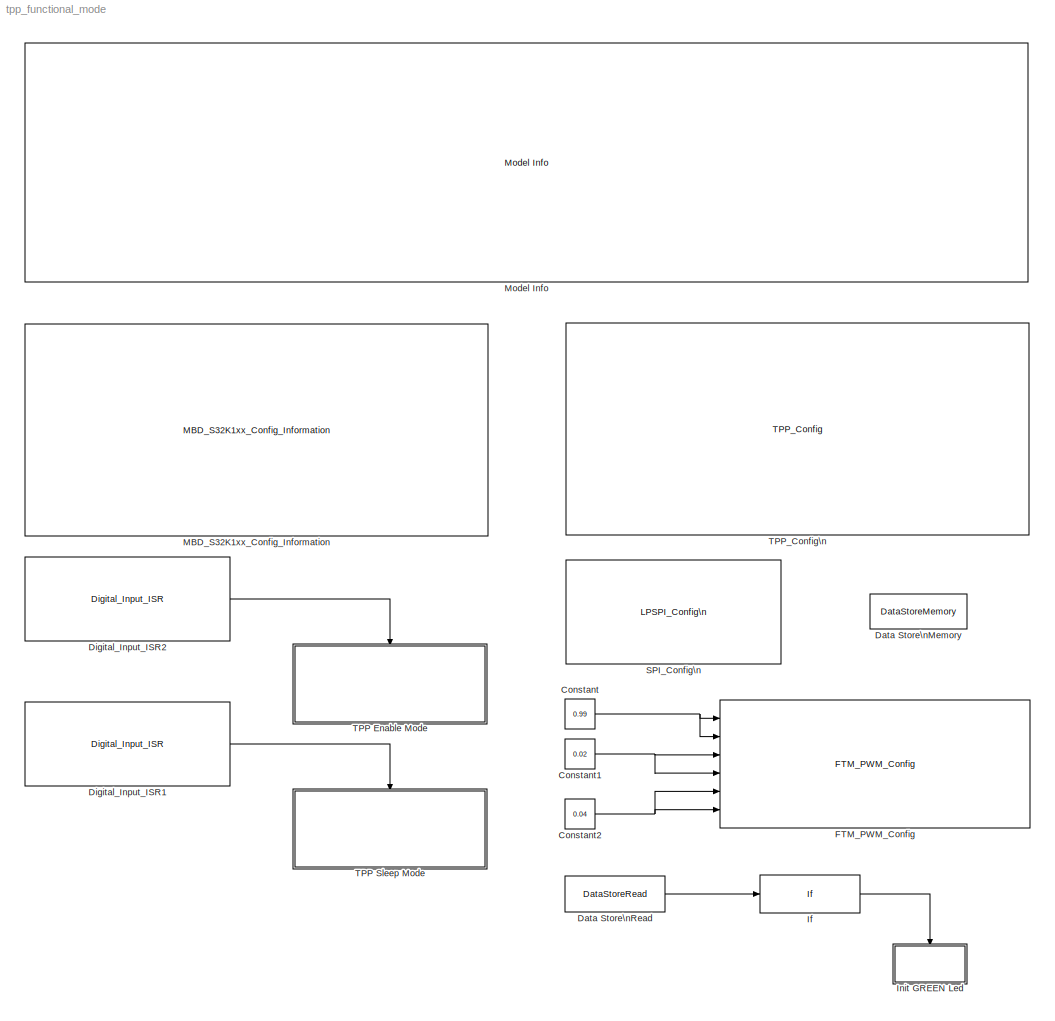
MODEL tpp_functional_mode
KIND model
CONFIG InitFcn = mbd_s32k_consistency_checks(bdroot(gcs));
BLOCK [Constant] Constant
  OutDataTypeStr = single
  SID = 2
  Value = 0.99
BLOCK [Constant] Constant1
  OutDataTypeStr = single
  SID = 3
  Value = 0.02
BLOCK [Constant] Constant2
  OutDataTypeStr = single
  SID = 4
  Value = 0.04
BLOCK [DataStoreMemory] Data Store\nMemory
  DataStoreName = initLED
  OutDataTypeStr = uint8
  ReadBeforeWriteMsg = warning
  SID = 48
  ShowAdditionalParam = off
  WriteAfterReadMsg = warning
  WriteAfterWriteMsg = warning
BLOCK [DataStoreRead] Data Store\nRead
  DataStoreName = initLED
  Ports = [0, 1]
  SID = 49
BLOCK [Reference] Digital_Input_ISR1  REF=mbd_s32k1xx_ec_toolbox/GPIO Blocks/Digital_Input_ISR
  MultiThreadCoSim = auto
  Ports = [0, 1]
  SID = 7
  SourceBlock = mbd_s32k1xx_ec_toolbox/GPIO Blocks/Digital_Input_ISR
  SourceType = gpi_s32k_isr
  gpio_pin = PTC13: [PTC13 | Port C I/O]
  irqc = on falling-edge
  prio = 15
BLOCK [Reference] Digital_Input_ISR2  REF=mbd_s32k1xx_ec_toolbox/GPIO Blocks/Digital_Input_ISR
  MultiThreadCoSim = auto
  Ports = [0, 1]
  SID = 8
  SourceBlock = mbd_s32k1xx_ec_toolbox/GPIO Blocks/Digital_Input_ISR
  SourceType = gpi_s32k_isr
  gpio_pin = PTC12: [PTC12 | Port C I/O]
  irqc = on rising-edge
  prio = 15
BLOCK [Reference] FTM_PWM_Config  REF=mbd_s32k1xx_ec_toolbox/Motor Control Blocks/FTM Blocks/FTM_PWM_Config
  MultiThreadCoSim = auto
  Ports = [6]
  SID = 10
  SourceBlock = mbd_s32k1xx_ec_toolbox/Motor Control Blocks/FTM Blocks/FTM_PWM_Config
  SourceType = FTM_s32k_pwm_config_block
  chTrigger0 = off
  chTrigger1 = off
  chTrigger2 = off
  chTrigger3 = off
  chTrigger4 = off
  chTrigger5 = off
  chTrigger6 = off
  chTrigger7 = off
  chan0En = on
  chan0Type = Independent
  chan2En = on
  chan2Type = Independent
  chan4En = on
  chan4Type = Independent
  chan6En = off
  chan6Type = Independent
  chnMatch0 = off
  chnMatch1 = off
  chnMatch2 = off
  chnMatch3 = off
  chnMatch4 = off
  chnMatch5 = off
  chnMatch6 = off
  chnMatch7 = off
  deadtimeNs = 0
  deadtimePrescaler = Divide by 1
  deadtimeTicks = 0
  deadtimeUnits = Nanoseconds
  dutyCycleCh0 = 0.002
  dutyCycleCh1 = 0.002
  dutyCycleCh2 = 0.002
  dutyCycleCh3 = 0.002
  dutyCycleCh4 = 0.002
  dutyCycleCh5 = 0.002
  dutyCycleCh6 = 0.25
  dutyCycleCh7 = 0.25
  dutyCycleSim = off
  fault_disen_0 = off
  fault_disen_1 = off
  fault_disen_2 = off
  fault_disen_3 = off
  fault_filter_0 = off
  fault_filter_1 = off
  fault_filter_2 = off
  fault_filter_3 = off
  fault_pin_0 = None
  fault_pin_1 = None
  fault_pin_2 = None
  fault_pin_3 = None
  fault_polarity_0 = Active High
  fault_polarity_1 = Active high
  fault_polarity_2 = Active high
  fault_polarity_3 = Active high
  ftmMode = Edge-Aligned PWM
  ftmModule = 3
  ftmPeriod = 4000
  ftmPrescaler = Divide by 1
  ftmPwmUnits = Hz
  ftmSourceClock = 80 MHz
  initTrigger = off
  mcuTargetUpdate = on
  outFrequency = 20000
  outputComplem0 = Main inverted
  outputComplem2 = Main inverted
  outputComplem4 = Main inverted
  outputComplem6 = Main duplicated
  outputLevel0 = Low
  outputLevel1 = Low
  outputLevel2 = Low
  outputLevel3 = Low
  outputLevel4 = Low
  outputLevel5 = Low
  outputLevel6 = Low
  outputLevel7 = Low
  pinFtmCh0 = PTB8: [FTM3_CH0 | FTM Channel]
  pinFtmCh1 = PTB9: [FTM3_CH1 | FTM Channel]
  pinFtmCh2 = PTB10: [FTM3_CH2 | FTM Channel]
  pinFtmCh3 = PTB11: [FTM3_CH3 | FTM Channel]
  pinFtmCh4 = PTC10: [FTM3_CH4 | FTM Channel]
  pinFtmCh5 = PTC11: [FTM3_CH5 | FTM Channel]
  pinFtmCh6 = PTC12: [FTM3_CH6 | FTM Channel]
  pinFtmCh7 = PTC13: [FTM3_CH7 | FTM Channel]
  pinPolCh0 = Active Low
  pinPolCh1 = Active Low
  pinPolCh2 = Active High
  pinPolCh3 = Active High
  pinPolCh4 = Active Low
  pinPolCh5 = Active Low
  pinPolCh6 = Active Low
  pinPolCh7 = Active Low
  pwmFaultClearing = Fault control disabled
  pwmFaultFilterValue = 0
  pwmFaultInterrupt = off
  pwmFaultPinState = Safe Value
  pwmFaultPriority = 15
  pwmFaultProtection = off
  pwmSyncAutoClear = on
  pwmSyncCounterInitial = System Clock
  pwmSyncHwRouting = TRGMUX_FTM7
  pwmSyncInvert = System Clock
  pwmSyncMaxLoad = on
  pwmSyncMinLoad = on
  pwmSyncOutControl = System Clock
  pwmSyncOutMask = System Clock
  pwmSyncPoints = Update now
  pwmSyncTrg = Software trigger
  pwmSyncTrg0 = off
  pwmSyncTrg1 = off
  pwmSyncTrg2 = off
  reloadEnable = off
  reloadFrequency = 0
  reloadHCR = 0
  reloadHalfCycle = off
  reloadPriority = 15
  showAdvOpt = on
  startAfterInit = on
  swcontrol_enable = off
BLOCK [If] If
  IfExpression = u1 < 1
  Ports = [1, 1]
  SID = 41
  ShowElse = off
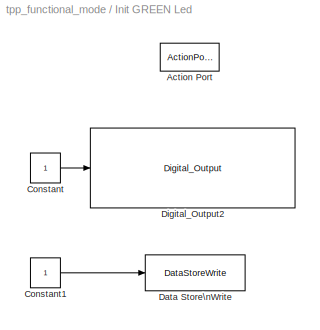
BLOCK [SubSystem] Init GREEN Led
  Ports = [0, 0, 0, 0, 0, 0, 0, 1]
  RequestExecContextInheritance = off
  SID = 82
  TreatAsAtomicUnit = on
BLOCK [ActionPort] Init GREEN Led/Action Port
  ActionPortLabel = if(u1 < 1)
  SID = 84
BLOCK [Constant] Init GREEN Led/Constant
  OutDataTypeStr = boolean
  SID = 86
BLOCK [Constant] Init GREEN Led/Constant1
  OutDataTypeStr = uint8
  SID = 87
BLOCK [DataStoreWrite] Init GREEN Led/Data Store\nWrite
  DataStoreName = initLED
  Ports = [1]
  SID = 88
BLOCK [Reference] Init GREEN Led/Digital_Output2  REF=mbd_s32k1xx_ec_toolbox/GPIO Blocks/Digital_Output
  MultiThreadCoSim = auto
  Ports = [1]
  SID = 89
  SourceBlock = mbd_s32k1xx_ec_toolbox/GPIO Blocks/Digital_Output
  SourceType = gpio_s32k_output
  drive_strength = Low
  gpio_pin = PTD16: [PTD16 | Port D I/O]
  init_val = Low
BLOCK [Reference] MBD_S32K1xx_Config_Information  REF=mbd_s32k1xx_ec_toolbox/MBD_S32K1xx_Config_Information
  ADC_PcrCheckEnDis = on
  AMMCLIB_PcrCheckEnDis = on
  CMP_PcrCheckEnDis = on
  CSEc_PcrCheckEnDis = on
  ConfigParams_PcrCheckEnDis = on
  FM_PcrCheckEnDis = on
  FTM_Dual_Edge_Inputs_PcrCheckEnDis = on
  FTM_Hall_Sensor_Inputs_PcrCheckEnDis = on
  FTM_Input_Edge_Inputs_PcrCheckEnDis = on
  FTM_PWM_PcrCheckEnDis = on
  FTM_Quadrature_Inputs_PcrCheckEnDis = on
  FlexCAN_PcrCheckEnDis = on
  FlexIO_PcrCheckEnDis = on
  GPIO_InputPcrCheckEnDis = on
  GPIO_OutputPcrCheckEnDis = on
  LIN_PcrCheckEnDis = on
  LPI2C_PcrCheckEnDis = on
  LPSPI_PcrCheckEnDis = on
  LPTMR_PcrCheckEnDis = on
  LPUART_PcrCheckEnDis = on
  ModelRef_PcrCheckEnDis = on
  MultiThreadCoSim = auto
  PDB0_PcrCheckEnDis = on
  PIT_PcrCheckEnDis = on
  Ports = []
  Profile_PcrCheckEnDis = on
  RTC_PcrCheckEnDis = on
  SBC_PcrCheckEnDis = on
  SID = 21
  SourceBlock = mbd_s32k1xx_ec_toolbox/MBD_S32K1xx_Config_Information
  SourceType = MBDTBX_EC_S32K
  WDOG_PcrCheckEnDis = on
  config_params = []
  disp_str = Target : S32K144-64KB_SRAM\nPackage : 100-pin\nSystem clock : 80 MHz\nXTAL clock : External 8 MHz\nCompiler : IAR\nTarget Type : FLASH\nDownload Code after build : off\nStep Tick Interrupt Priority : 15
  ds_import_enable = on
  eDMA_PcrCheckEnDis = on
  gcc_target_assemble_opts = -mcpu=cortex-m4 -mthumb -mfloat-abi=hard -mfpu=fpv4-sp-d16 -g
  gcc_target_compile_opts = -mcpu=cortex-m4 -mthumb -mfloat-abi=hard -mfpu=fpv4-sp-d16 -O1 -g -gstrict-dwarf
  gcc_target_default_lcf = on
  gcc_target_link_opts = -mcpu=cortex-m4 -mthumb -mfloat-abi=hard -mfpu=fpv4-sp-d16
  gcc_target_user_lcf = S32K144_64_flash.ld
  ghs_target_assemble_opts = -cpu=cortexm4f -fpu=vfpv4_d16
  ghs_target_compile_opts = -cpu=cortexm4f -thumb -DARM_MATH_CM4 -fpu=vfpv4_d16 -fsingle -Ogeneral -Wundef -Wimplicit-int -Wshadow -Wtrigraphs --no_commons --gnu_asm -gnu99 -gdwarf-2 -G
  ghs_target_default_lcf = on
  ghs_target_link_opts = -cpu=cortexm4f -thumb -fpu=vfpv4_d16
  ghs_target_user_lcf = S32K144_64_flash.ld
  iar_target_assemble_opts = --cpu Cortex-M4F --thumb --fpu VFPv4_sp
  iar_target_compile_opts = --cpu=Cortex-M4F --thumb --fpu=VFPv4_sp -Ol -e --debug --dlib_config normal
  iar_target_default_lcf = on
  iar_target_link_opts = --no_exceptions --vfe --inline
  iar_target_user_lcf = S32K144_64_flash.icf
  mbdt_ver = 0
  mcu_steptick_prio = 15
  mcu_steptick_timer = LPIT Channel 0
  mcu_system_clock_freq = 80
  mcu_target_name = S32K144
  mcu_target_package = 100-LQFP
  mcu_target_sram_size = 64KB
  mcu_xtal_freq = External 8
  pil_download_enable = off
  pil_download_rate = 57600
  pil_opensda_drive = Custom
  pil_opensda_drive_custom = D
  pil_uart_instance = 1
  pil_uart_rx = PTC6: [LPUART1_RX | Receive]
  pil_uart_tx = PTC7: [LPUART1_TX | Transmit]
  rbl_com_port = Custom
  rbl_com_port_custom = COM1
  rbl_download_enable = on
  rbl_download_interface = OpenSDA
  rbl_restart_request = off
  rbl_start_delay = 5000
  target_compiler = GCC
  target_memory = FLASH
BLOCK [Reference] Model Info  REF=simulink/Model-Wide\nUtilities/Model Info
  DisplayStringWithTags = Model Name: %<ModelName>\n\nDescription: %<Description>
  Frame = on
  HorizontalTextAlignment = Left
  LeftAlignmentValue = 0.02
  MaskDisplayString = Model Name: tpp_functional_mode\\n\\nDescription: This model demonstrates how to use TPP Config block and enable later the outputs of TPP using \"TPP Functional Mode\" block.\\nInitially TPP is disabled. With an oscilloscope, on PHA, PHB, PHC it can't be seen any pwm signal.\\n\\n!!!Warnings : \\n-please disconect any load from outputs of DEVKIT-MOTORGD (eg.: coil, motor, low value resistor)\\n- i...<+778ch>
  Ports = []
  SID = 90
  SourceBlock = simulink/Model-Wide\nUtilities/Model Info
  SourceProductBaseCode = SL
  SourceProductName = Simulink
  SourceType = CMBlock
BLOCK [Reference] SPI_Config\n  REF=mbd_s32k1xx_ec_toolbox/Communication Blocks/SPI Blocks/LPSPI_Config\n
  BaudRate = 2000000
  BitOrder = MSB first
  CPHA = 1
  CPOL = 0
  ContinuousTransfer = off
  InstanceNumber = 0
  MultiThreadCoSim = auto
  PCSPol = ActiveLow
  Ports = []
  Priority = 2
  Role = Master
  SID = 22
  ShowAdvanced = on
  SourceBlock = mbd_s32k1xx_ec_toolbox/Communication Blocks/SPI Blocks/LPSPI_Config\n
  SourceType = lpspi_s32k_config
  TransferSize = 8
  WhichPCS = 0
  pcs0 = None
  pcs1 = None
  pcs2 = None
  pcs3 = None
  sck = PTB2: [LPSPI0_SCK | LPSPI Serial Clock I/O]
  sin = PTB3: [LPSPI0_SIN | LPSPI Serial Data Input]
  sout = PTB4: [LPSPI0_SOUT | LPSPI Serial Data Output]
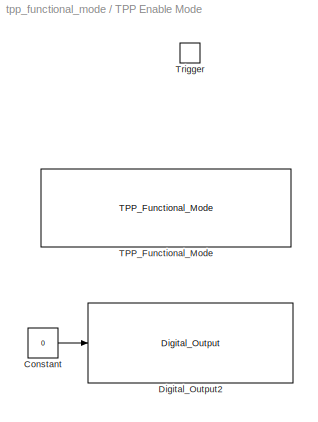
BLOCK [SubSystem] TPP Enable Mode
  Ports = [0, 0, 0, 1]
  RequestExecContextInheritance = off
  SID = 30
BLOCK [Constant] TPP Enable Mode/Constant
  OutDataTypeStr = boolean
  SID = 40
  Value = 0
BLOCK [Reference] TPP Enable Mode/Digital_Output2  REF=mbd_s32k1xx_ec_toolbox/GPIO Blocks/Digital_Output
  MultiThreadCoSim = auto
  Ports = [1]
  SID = 39
  SourceBlock = mbd_s32k1xx_ec_toolbox/GPIO Blocks/Digital_Output
  SourceType = gpio_s32k_output
  drive_strength = Low
  gpio_pin = PTD16: [PTD16 | Port D I/O]
  init_val = Low
BLOCK [Reference] TPP Enable Mode/TPP_Functional_Mode  REF=mbd_msd_ec_toolbox/TPP/TPP_Functional_Mode
  MultiThreadCoSim = auto
  Ports = []
  Priority = 0
  SID = 32
  SourceBlock = mbd_msd_ec_toolbox/TPP/TPP_Functional_Mode
  SourceType = TPP_functional_mode
  action = Enable
  tppInstance = 0
BLOCK [TriggerPort] TPP Enable Mode/Trigger
  PortDimensions = 1
  Ports = []
  SID = 31
  StatesWhenEnabling = held
  TriggerType = function-call
  VariantControl = Variant
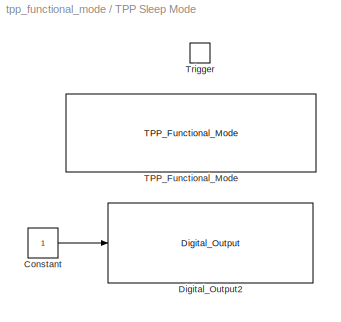
BLOCK [SubSystem] TPP Sleep Mode
  Ports = [0, 0, 0, 1]
  RequestExecContextInheritance = off
  SID = 23
BLOCK [Constant] TPP Sleep Mode/Constant
  OutDataTypeStr = boolean
  SID = 38
BLOCK [Reference] TPP Sleep Mode/Digital_Output2  REF=mbd_s32k1xx_ec_toolbox/GPIO Blocks/Digital_Output
  MultiThreadCoSim = auto
  Ports = [1]
  SID = 37
  SourceBlock = mbd_s32k1xx_ec_toolbox/GPIO Blocks/Digital_Output
  SourceType = gpio_s32k_output
  drive_strength = Low
  gpio_pin = PTD16: [PTD16 | Port D I/O]
  init_val = Low
BLOCK [Reference] TPP Sleep Mode/TPP_Functional_Mode  REF=mbd_msd_ec_toolbox/TPP/TPP_Functional_Mode
  MultiThreadCoSim = auto
  Ports = []
  SID = 27
  SourceBlock = mbd_msd_ec_toolbox/TPP/TPP_Functional_Mode
  SourceType = TPP_functional_mode
  action = Sleep
  tppInstance = 0
BLOCK [TriggerPort] TPP Sleep Mode/Trigger
  PortDimensions = 1
  Ports = []
  SID = 24
  StatesWhenEnabling = held
  TriggerType = function-call
  VariantControl = Variant
BLOCK [Reference] TPP_Config\n  REF=mbd_msd_ec_toolbox/TPP/TPP_Config
  MultiThreadCoSim = auto
  Ports = []
  Priority = 1
  SID = 34
  SourceBlock = mbd_msd_ec_toolbox/TPP/TPP_Config
  SourceType = tpp_s32k_config
  desatEvent = on
  desatMode = off
  framingEvent = on
  fullonMode = off
  initTppNow = off
  lockMode = off
  mcuTppIntEn = off
  overcurrentEvent = on
  overtempEvent = on
  phaseEvent = on
  prioInt = 15
  resetEvent = on
  tppCsPin = PTB5: [PTB5 | Port B I/O]
  tppDeadtime = 200
  tppEn1Pin = PTA2: [PTA2 | Port A I/O]
  tppEn2Pin = PTA2: [PTA2 | Port A I/O]
  tppFirstChHS = on
  tppInstance = 0
  tppIntPin = PTE10: [PTE10 | Port E I/O]
  tppPair0_1 = on
  tppPair2_3 = on
  tppPair4_5 = on
  tppPair6_7 = off
  tppPwmModule = 3
  tppRstPin = PTA3: [PTA3 | Port A I/O]
  tppSpiInst = 0
  vlsEvent = on
  writeErrEvent = on
NET Constant1:1 -> FTM_PWM_Config:3, FTM_PWM_Config:4
NET Constant2:1 -> FTM_PWM_Config:5, FTM_PWM_Config:6
NET Constant:1 -> FTM_PWM_Config:1, FTM_PWM_Config:2
LINE Data Store\nRead:1 -> If:1
LINE Digital_Input_ISR1:1 -> TPP Sleep Mode:trigger
LINE Digital_Input_ISR2:1 -> TPP Enable Mode:trigger
LINE If:1 -> Init GREEN Led:ifaction
LINE Init GREEN Led/Constant1:1 -> Init GREEN Led/Data Store\nWrite:1
LINE Init GREEN Led/Constant:1 -> Init GREEN Led/Digital_Output2:1
LINE TPP Enable Mode/Constant:1 -> TPP Enable Mode/Digital_Output2:1
LINE TPP Sleep Mode/Constant:1 -> TPP Sleep Mode/Digital_Output2:1
note: NET lines group one-source signal fan-out (src -> all destinations, sorted); 1:1 wires keep LINE
